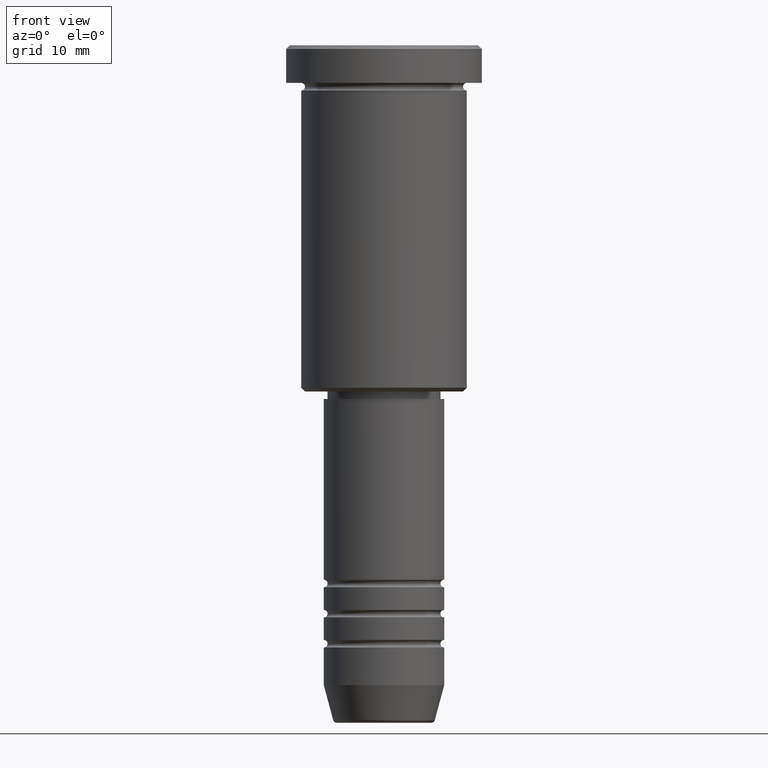
[diagram: clean part render]
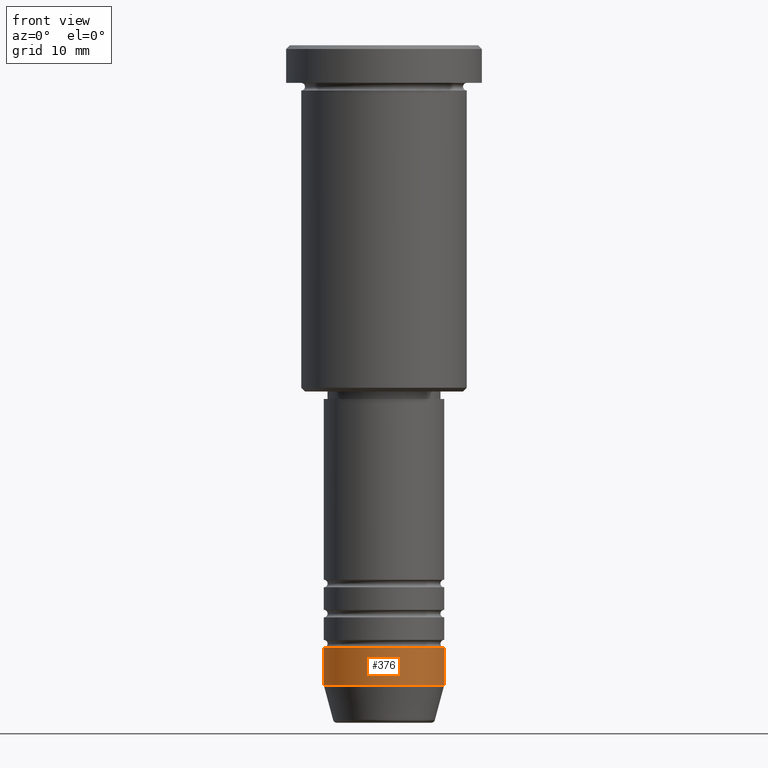
[diagram: same view with one face highlighted and labeled with its STEP entity id]
A machine part, front view. The second image highlights one B-rep face of the part: STEP entity #376.
In plain terms, the highlighted cylindrical surface (partial cylindrical patch) has radius 8 mm, axis along (-0, -0, 1).
Its self-contained STEP definition (entity closure, byte-faithful):
#1 = CARTESIAN_POINT ( 'NONE',  ( 0.000000000000000000, 0.000000000000000000, 0.000000000000000000 ) ) ;
#11 = CARTESIAN_POINT ( 'NONE',  ( -8.000000000000000000, 9.797174393178825657E-16, -79.99999999999998579 ) ) ;
#28 = AXIS2_PLACEMENT_3D ( 'NONE', #532, #832, #723 ) ;
#79 = ORIENTED_EDGE ( 'NONE', *, *, #990, .T. ) ;
#163 = DIRECTION ( 'NONE',  ( -0.000000000000000000, -0.000000000000000000, 1.000000000000000000 ) ) ;
#267 = DIRECTION ( 'NONE',  ( 1.000000000000000000, 0.000000000000000000, 0.000000000000000000 ) ) ;
#292 = ORIENTED_EDGE ( 'NONE', *, *, #530, .T. ) ;
#352 = FACE_OUTER_BOUND ( 'NONE', #400, .T. ) ;
#372 = VECTOR ( 'NONE', #1028, 1000.000000000000000 ) ;
#376 = ADVANCED_FACE ( 'NONE', ( #352 ), #1087, .T. ) ;
#381 = LINE ( 'NONE', #849, #372 ) ;
#400 = EDGE_LOOP ( 'NONE', ( #939, #292, #79, #1015 ) ) ;
#414 = VERTEX_POINT ( 'NONE', #11 ) ;
#445 = EDGE_CURVE ( 'NONE', #414, #864, #536, .T. ) ;
#487 = VECTOR ( 'NONE', #163, 1000.000000000000000 ) ;
#530 = EDGE_CURVE ( 'NONE', #692, #789, #858, .T. ) ;
#532 = CARTESIAN_POINT ( 'NONE',  ( 0.000000000000000000, 0.000000000000000000, -79.99999999999998579 ) ) ;
#536 = CIRCLE ( 'NONE', #28, 8.000000000000000000 ) ;
#594 = CARTESIAN_POINT ( 'NONE',  ( 0.000000000000000000, 0.000000000000000000, -84.99999999999998579 ) ) ;
#692 = VERTEX_POINT ( 'NONE', #1152 ) ;
#719 = CARTESIAN_POINT ( 'NONE',  ( 8.000000000000000000, 0.000000000000000000, -79.99999999999998579 ) ) ;
#723 = DIRECTION ( 'NONE',  ( 1.000000000000000000, 0.000000000000000000, 0.000000000000000000 ) ) ;
#788 = CARTESIAN_POINT ( 'NONE',  ( -8.000000000000000000, 9.797174393178825657E-16, 0.000000000000000000 ) ) ;
#789 = VERTEX_POINT ( 'NONE', #1160 ) ;
#801 = EDGE_CURVE ( 'NONE', #692, #414, #979, .T. ) ;
#832 = DIRECTION ( 'NONE',  ( -0.000000000000000000, -0.000000000000000000, 1.000000000000000000 ) ) ;
#840 = DIRECTION ( 'NONE',  ( -0.000000000000000000, -0.000000000000000000, 1.000000000000000000 ) ) ;
#849 = CARTESIAN_POINT ( 'NONE',  ( 8.000000000000000000, 0.000000000000000000, 0.000000000000000000 ) ) ;
#858 = CIRCLE ( 'NONE', #1134, 8.000000000000000000 ) ;
#864 = VERTEX_POINT ( 'NONE', #719 ) ;
#939 = ORIENTED_EDGE ( 'NONE', *, *, #801, .F. ) ;
#979 = LINE ( 'NONE', #788, #487 ) ;
#990 = EDGE_CURVE ( 'NONE', #789, #864, #381, .T. ) ;
#1015 = ORIENTED_EDGE ( 'NONE', *, *, #445, .F. ) ;
#1022 = AXIS2_PLACEMENT_3D ( 'NONE', #1, #1180, #267 ) ;
#1028 = DIRECTION ( 'NONE',  ( -0.000000000000000000, -0.000000000000000000, 1.000000000000000000 ) ) ;
#1049 = DIRECTION ( 'NONE',  ( 1.000000000000000000, 0.000000000000000000, 0.000000000000000000 ) ) ;
#1087 = CYLINDRICAL_SURFACE ( 'NONE', #1022, 8.000000000000000000 ) ;
#1134 = AXIS2_PLACEMENT_3D ( 'NONE', #594, #840, #1049 ) ;
#1152 = CARTESIAN_POINT ( 'NONE',  ( -8.000000000000000000, 9.797174393178825657E-16, -84.99999999999998579 ) ) ;
#1160 = CARTESIAN_POINT ( 'NONE',  ( 8.000000000000000000, 0.000000000000000000, -84.99999999999998579 ) ) ;
#1180 = DIRECTION ( 'NONE',  ( -0.000000000000000000, -0.000000000000000000, 1.000000000000000000 ) ) ;